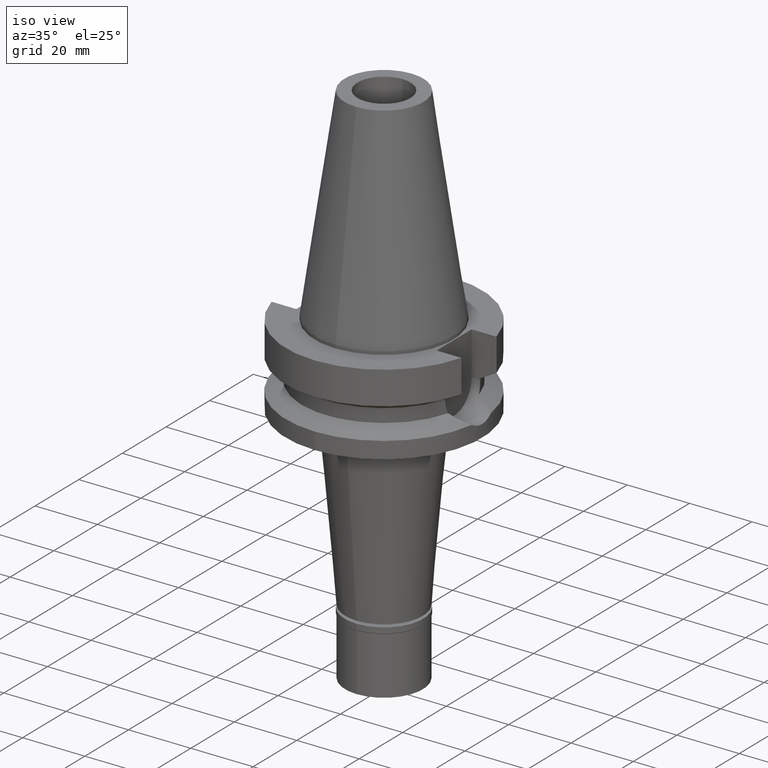
[diagram: clean part render]
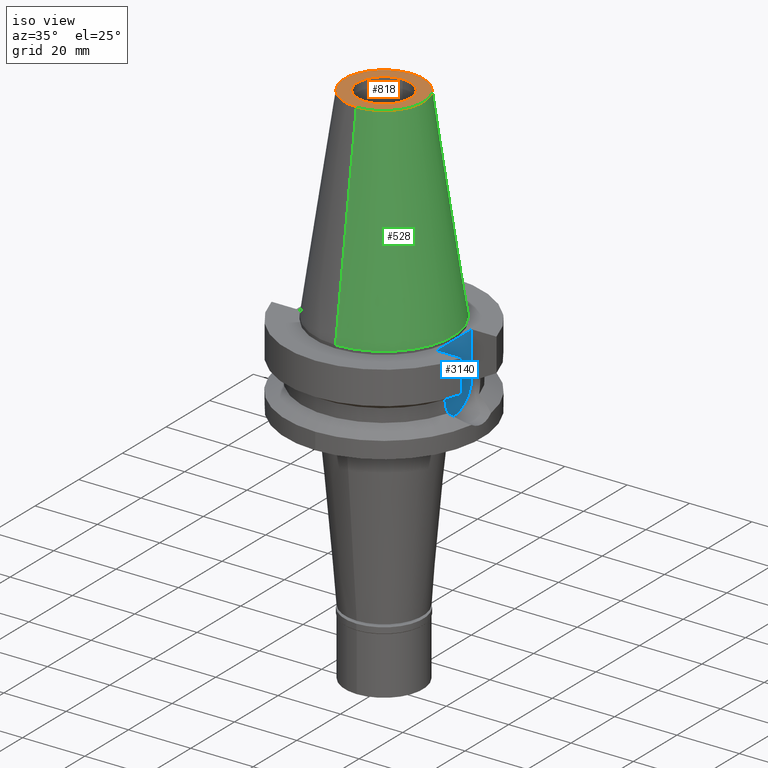
[diagram: same view with three faces highlighted in distinct colors, each labeled with its STEP entity id]
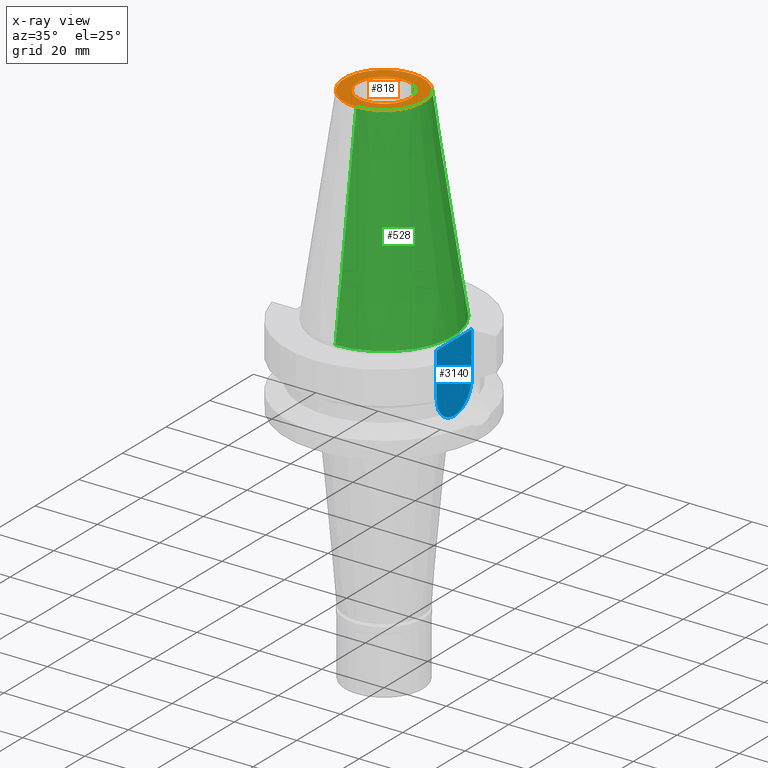
[diagram: x-ray of the same camera — body ghosted, the three highlighted faces saturated]
A machine part, iso view with three faces highlighted in distinct colors.
The next image is the same camera in x-ray (body ghosted, the three faces saturated) — at least one of them is partly hidden behind the body in this view.
Their STEP definitions:

[orange] entity #818 — the highlighted planar face has unit normal (0, 0, -1).
#36 = VERTEX_POINT ( 'NONE', #1736 ) ;
#50 = DIRECTION ( 'NONE',  ( 0.0000000000000000000, -1.000000000000000000, 0.0000000000000000000 ) ) ;
#202 = ORIENTED_EDGE ( 'NONE', *, *, #1751, .F. ) ;
#205 = DIRECTION ( 'NONE',  ( 0.0000000000000000000, 1.000000000000000000, 0.0000000000000000000 ) ) ;
#230 = AXIS2_PLACEMENT_3D ( 'NONE', #399, #412, #1922 ) ;
#253 = VERTEX_POINT ( 'NONE', #1822 ) ;
#277 = EDGE_LOOP ( 'NONE', ( #2378, #202 ) ) ;
#399 = CARTESIAN_POINT ( 'NONE',  ( 0.0000000000000000000, 1.625106302469000024E-14, 65.40000000000000568 ) ) ;
#412 = DIRECTION ( 'NONE',  ( 0.0000000000000000000, 0.0000000000000000000, -1.000000000000000000 ) ) ;
#456 = ORIENTED_EDGE ( 'NONE', *, *, #2880, .F. ) ;
#557 = DIRECTION ( 'NONE',  ( 0.0000000000000000000, 0.0000000000000000000, 1.000000000000000000 ) ) ;
#684 = CARTESIAN_POINT ( 'NONE',  ( 0.0000000000000000000, 1.625106302469000024E-14, 65.40000000000000568 ) ) ;
#782 = CARTESIAN_POINT ( 'NONE',  ( 0.0000000000000000000, -12.68766899429999917, 65.40000000000000568 ) ) ;
#795 = AXIS2_PLACEMENT_3D ( 'NONE', #684, #926, #205 ) ;
#818 = ADVANCED_FACE ( 'NONE', ( #919, #2654 ), #2857, .F. ) ;
#890 = EDGE_LOOP ( 'NONE', ( #1674, #456 ) ) ;
#919 = FACE_OUTER_BOUND ( 'NONE', #277, .T. ) ;
#926 = DIRECTION ( 'NONE',  ( 0.0000000000000000000, 0.0000000000000000000, -1.000000000000000000 ) ) ;
#1008 = CARTESIAN_POINT ( 'NONE',  ( 0.0000000000000000000, 2.126109307999999799E-14, 65.40000000000000568 ) ) ;
#1202 = AXIS2_PLACEMENT_3D ( 'NONE', #2696, #557, #2998 ) ;
#1663 = DIRECTION ( 'NONE',  ( 0.0000000000000000000, -1.000000000000000000, 0.0000000000000000000 ) ) ;
#1674 = ORIENTED_EDGE ( 'NONE', *, *, #2782, .F. ) ;
#1736 = CARTESIAN_POINT ( 'NONE',  ( 0.0000000000000000000, 12.68766899429999917, 65.40000000000000568 ) ) ;
#1751 = EDGE_CURVE ( 'NONE', #2318, #36, #2875, .T. ) ;
#1822 = CARTESIAN_POINT ( 'NONE',  ( 0.0000000000000000000, 8.500000000000000000, 65.40000000000000568 ) ) ;
#1922 = DIRECTION ( 'NONE',  ( 0.0000000000000000000, -1.000000000000000000, 0.0000000000000000000 ) ) ;
#1924 = DIRECTION ( 'NONE',  ( 0.0000000000000000000, 0.0000000000000000000, -1.000000000000000000 ) ) ;
#1940 = CARTESIAN_POINT ( 'NONE',  ( 0.0000000000000000000, -8.500000000000000000, 65.40000000000000568 ) ) ;
#1960 = AXIS2_PLACEMENT_3D ( 'NONE', #1008, #2966, #50 ) ;
#2109 = CIRCLE ( 'NONE', #1960, 8.500000000000000000 ) ;
#2122 = EDGE_CURVE ( 'NONE', #36, #2318, #3138, .T. ) ;
#2318 = VERTEX_POINT ( 'NONE', #782 ) ;
#2378 = ORIENTED_EDGE ( 'NONE', *, *, #2122, .F. ) ;
#2570 = CIRCLE ( 'NONE', #1202, 8.500000000000000000 ) ;
#2623 = CARTESIAN_POINT ( 'NONE',  ( 0.0000000000000000000, 2.025565805790000122E-14, 65.40000000000000568 ) ) ;
#2654 = FACE_BOUND ( 'NONE', #890, .T. ) ;
#2696 = CARTESIAN_POINT ( 'NONE',  ( 0.0000000000000000000, 2.126109307999999799E-14, 65.40000000000000568 ) ) ;
#2782 = EDGE_CURVE ( 'NONE', #253, #3098, #2570, .T. ) ;
#2857 = PLANE ( 'NONE',  #3077 ) ;
#2875 = CIRCLE ( 'NONE', #230, 12.68766899429999917 ) ;
#2880 = EDGE_CURVE ( 'NONE', #3098, #253, #2109, .T. ) ;
#2966 = DIRECTION ( 'NONE',  ( 0.0000000000000000000, 0.0000000000000000000, 1.000000000000000000 ) ) ;
#2998 = DIRECTION ( 'NONE',  ( 0.0000000000000000000, 1.000000000000000000, 0.0000000000000000000 ) ) ;
#3077 = AXIS2_PLACEMENT_3D ( 'NONE', #2623, #1924, #1663 ) ;
#3098 = VERTEX_POINT ( 'NONE', #1940 ) ;
#3138 = CIRCLE ( 'NONE', #795, 12.68766899429999917 ) ;

[blue] entity #3140 — the highlighted planar face has unit normal (1, 0, 0).
#2 = DIRECTION ( 'NONE',  ( 0.0000000000000000000, 0.0000000000000000000, -1.000000000000000000 ) ) ;
#41 = LINE ( 'NONE', #2273, #133 ) ;
#107 = ORIENTED_EDGE ( 'NONE', *, *, #2730, .F. ) ;
#133 = VECTOR ( 'NONE', #1014, 1000.000000000000000 ) ;
#213 = FACE_OUTER_BOUND ( 'NONE', #1967, .T. ) ;
#366 = CARTESIAN_POINT ( 'NONE',  ( 22.50000000000000000, -8.050000000000000711, -14.94999999999999929 ) ) ;
#466 = DIRECTION ( 'NONE',  ( 0.0000000000000000000, 1.000000000000000000, 0.0000000000000000000 ) ) ;
#697 = LINE ( 'NONE', #1668, #2281 ) ;
#749 = LINE ( 'NONE', #1934, #2116 ) ;
#768 = DIRECTION ( 'NONE',  ( 0.0000000000000000000, 0.0000000000000000000, -1.000000000000000000 ) ) ;
#1014 = DIRECTION ( 'NONE',  ( 0.0000000000000000000, 0.0000000000000000000, 1.000000000000000000 ) ) ;
#1063 = VERTEX_POINT ( 'NONE', #2094 ) ;
#1064 = ORIENTED_EDGE ( 'NONE', *, *, #2012, .T. ) ;
#1290 = DIRECTION ( 'NONE',  ( -1.000000000000000000, 0.0000000000000000000, 0.0000000000000000000 ) ) ;
#1352 = ORIENTED_EDGE ( 'NONE', *, *, #2250, .F. ) ;
#1369 = VERTEX_POINT ( 'NONE', #2311 ) ;
#1668 = CARTESIAN_POINT ( 'NONE',  ( 22.50000000000000000, 8.050000000000000711, -1.000000000000000000 ) ) ;
#1750 = VERTEX_POINT ( 'NONE', #366 ) ;
#1784 = CARTESIAN_POINT ( 'NONE',  ( 22.50000000000000000, 0.0000000000000000000, -14.94999999999999929 ) ) ;
#1906 = DIRECTION ( 'NONE',  ( 1.000000000000000000, 0.0000000000000000000, 0.0000000000000000000 ) ) ;
#1934 = CARTESIAN_POINT ( 'NONE',  ( 22.50000000000000000, 8.050000000000000711, -1.000000000000000000 ) ) ;
#1967 = EDGE_LOOP ( 'NONE', ( #3052, #1352, #107, #1064 ) ) ;
#2012 = EDGE_CURVE ( 'NONE', #2770, #1369, #749, .T. ) ;
#2022 = AXIS2_PLACEMENT_3D ( 'NONE', #1784, #1290, #768 ) ;
#2094 = CARTESIAN_POINT ( 'NONE',  ( 22.50000000000000000, 8.050000000000000711, -14.94999999999999929 ) ) ;
#2116 = VECTOR ( 'NONE', #2901, 1000.000000000000000 ) ;
#2250 = EDGE_CURVE ( 'NONE', #1063, #1750, #2531, .T. ) ;
#2267 = CARTESIAN_POINT ( 'NONE',  ( 22.50000000000000000, 8.050000000000000711, -1.000000000000000000 ) ) ;
#2273 = CARTESIAN_POINT ( 'NONE',  ( 22.50000000000000000, -8.050000000000000711, -14.94999999999999929 ) ) ;
#2281 = VECTOR ( 'NONE', #2, 1000.000000000000000 ) ;
#2293 = EDGE_CURVE ( 'NONE', #1750, #1369, #41, .T. ) ;
#2311 = CARTESIAN_POINT ( 'NONE',  ( 22.50000000000000000, -8.050000000000000711, -1.000000000000000000 ) ) ;
#2528 = AXIS2_PLACEMENT_3D ( 'NONE', #2656, #1906, #466 ) ;
#2531 = CIRCLE ( 'NONE', #2022, 8.050000000000000711 ) ;
#2641 = PLANE ( 'NONE',  #2528 ) ;
#2656 = CARTESIAN_POINT ( 'NONE',  ( 22.50000000000000000, 0.0000000000000000000, 0.0000000000000000000 ) ) ;
#2730 = EDGE_CURVE ( 'NONE', #2770, #1063, #697, .T. ) ;
#2770 = VERTEX_POINT ( 'NONE', #2267 ) ;
#2901 = DIRECTION ( 'NONE',  ( 0.0000000000000000000, -1.000000000000000000, 0.0000000000000000000 ) ) ;
#3052 = ORIENTED_EDGE ( 'NONE', *, *, #2293, .F. ) ;
#3140 = ADVANCED_FACE ( 'NONE', ( #213 ), #2641, .T. ) ;

[green] entity #528 — the highlighted conical surface has half-angle 8.297 deg.
#19 = AXIS2_PLACEMENT_3D ( 'NONE', #1710, #1949, #1927 ) ;
#20 = EDGE_CURVE ( 'NONE', #36, #2410, #799, .T. ) ;
#36 = VERTEX_POINT ( 'NONE', #1736 ) ;
#77 = DIRECTION ( 'NONE',  ( 0.0000000000000000000, 0.1443043893539925626, -0.9895333461855498891 ) ) ;
#205 = DIRECTION ( 'NONE',  ( 0.0000000000000000000, 1.000000000000000000, 0.0000000000000000000 ) ) ;
#271 = DIRECTION ( 'NONE',  ( 0.0000000000000000000, -0.1443043893539925626, -0.9895333461855498891 ) ) ;
#352 = CARTESIAN_POINT ( 'NONE',  ( 0.0000000000000000000, 1.625106302469000024E-14, 2.842170943039999687E-14 ) ) ;
#468 = AXIS2_PLACEMENT_3D ( 'NONE', #352, #1331, #887 ) ;
#528 = ADVANCED_FACE ( 'NONE', ( #978 ), #1387, .T. ) ;
#561 = CARTESIAN_POINT ( 'NONE',  ( 0.0000000000000000000, 22.22500000000000142, 9.237055564880999494E-14 ) ) ;
#664 = EDGE_CURVE ( 'NONE', #2410, #2191, #2104, .T. ) ;
#684 = CARTESIAN_POINT ( 'NONE',  ( 0.0000000000000000000, 1.625106302469000024E-14, 65.40000000000000568 ) ) ;
#782 = CARTESIAN_POINT ( 'NONE',  ( 0.0000000000000000000, -12.68766899429999917, 65.40000000000000568 ) ) ;
#795 = AXIS2_PLACEMENT_3D ( 'NONE', #684, #926, #205 ) ;
#799 = LINE ( 'NONE', #2010, #1215 ) ;
#887 = DIRECTION ( 'NONE',  ( 0.0000000000000000000, 1.000000000000000000, 0.0000000000000000000 ) ) ;
#926 = DIRECTION ( 'NONE',  ( 0.0000000000000000000, 0.0000000000000000000, -1.000000000000000000 ) ) ;
#978 = FACE_OUTER_BOUND ( 'NONE', #1484, .T. ) ;
#1112 = ORIENTED_EDGE ( 'NONE', *, *, #2122, .T. ) ;
#1215 = VECTOR ( 'NONE', #77, 1000.000000000000114 ) ;
#1331 = DIRECTION ( 'NONE',  ( 0.0000000000000000000, 0.0000000000000000000, -1.000000000000000000 ) ) ;
#1387 = CONICAL_SURFACE ( 'NONE', #19, 17.45633449714999941, 0.1448099680379422438 ) ;
#1484 = EDGE_LOOP ( 'NONE', ( #1112, #1817, #2443, #2154 ) ) ;
#1497 = EDGE_CURVE ( 'NONE', #2318, #2191, #2211, .T. ) ;
#1710 = CARTESIAN_POINT ( 'NONE',  ( 0.0000000000000000000, 1.625106302469000024E-14, 32.70000000000000284 ) ) ;
#1736 = CARTESIAN_POINT ( 'NONE',  ( 0.0000000000000000000, 12.68766899429999917, 65.40000000000000568 ) ) ;
#1755 = VECTOR ( 'NONE', #271, 1000.000000000000114 ) ;
#1817 = ORIENTED_EDGE ( 'NONE', *, *, #1497, .T. ) ;
#1927 = DIRECTION ( 'NONE',  ( 0.0000000000000000000, -1.000000000000000000, 0.0000000000000000000 ) ) ;
#1949 = DIRECTION ( 'NONE',  ( 0.0000000000000000000, 0.0000000000000000000, -1.000000000000000000 ) ) ;
#2010 = CARTESIAN_POINT ( 'NONE',  ( 0.0000000000000000000, 12.68766899429999917, 65.40000000000000568 ) ) ;
#2104 = CIRCLE ( 'NONE', #468, 22.22500000000000142 ) ;
#2122 = EDGE_CURVE ( 'NONE', #36, #2318, #3138, .T. ) ;
#2154 = ORIENTED_EDGE ( 'NONE', *, *, #20, .F. ) ;
#2191 = VERTEX_POINT ( 'NONE', #2526 ) ;
#2211 = LINE ( 'NONE', #2961, #1755 ) ;
#2318 = VERTEX_POINT ( 'NONE', #782 ) ;
#2410 = VERTEX_POINT ( 'NONE', #561 ) ;
#2443 = ORIENTED_EDGE ( 'NONE', *, *, #664, .F. ) ;
#2526 = CARTESIAN_POINT ( 'NONE',  ( 0.0000000000000000000, -22.22500000000000142, 9.237055564880999494E-14 ) ) ;
#2961 = CARTESIAN_POINT ( 'NONE',  ( 0.0000000000000000000, -12.68766899429999917, 65.40000000000000568 ) ) ;
#3138 = CIRCLE ( 'NONE', #795, 12.68766899429999917 ) ;